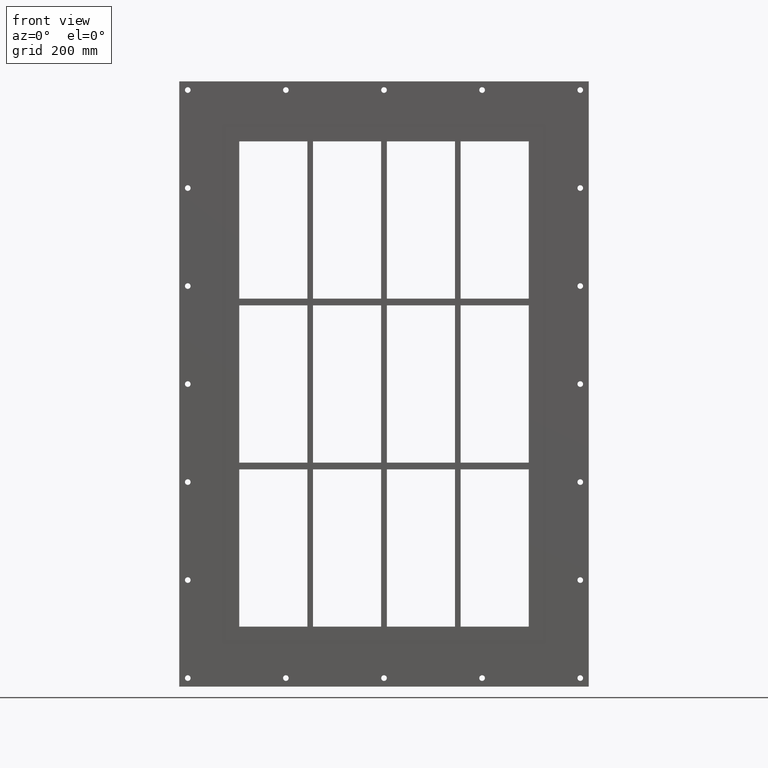
[diagram: clean part render]
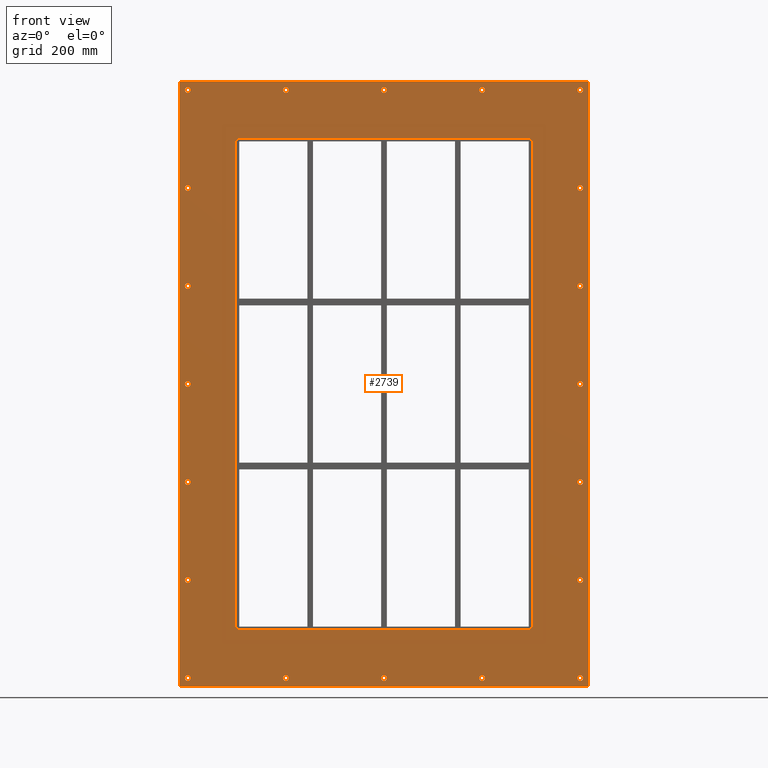
[diagram: same view with one face highlighted and labeled with its STEP entity id]
A machine part, front view. The second image highlights one B-rep face of the part: STEP entity #2739.
In plain terms, the highlighted planar face has unit normal (0, 1, 0).
Its self-contained STEP definition (entity closure, byte-faithful):
#84=CARTESIAN_POINT('',(-342.0,0.0,-520.00000000000011));
#85=VERTEX_POINT('',#84);
#86=CARTESIAN_POINT('',(-347.0,0.0,-520.00000000000011));
#87=DIRECTION('',(0.0,1.0,0.0));
#88=DIRECTION('',(1.0,0.0,0.0));
#89=AXIS2_PLACEMENT_3D('',#86,#87,#88);
#90=CIRCLE('',#89,5.0);
#91=EDGE_CURVE('',#85,#85,#90,.T.);
#112=CARTESIAN_POINT('',(352.0,0.0,-346.70000000000005));
#113=VERTEX_POINT('',#112);
#114=CARTESIAN_POINT('',(347.0,0.0,-346.70000000000005));
#115=DIRECTION('',(0.0,1.0,0.0));
#116=DIRECTION('',(1.0,0.0,0.0));
#117=AXIS2_PLACEMENT_3D('',#114,#115,#116);
#118=CIRCLE('',#117,5.0);
#119=EDGE_CURVE('',#113,#113,#118,.T.);
#140=CARTESIAN_POINT('',(-342.0,0.0,-346.70000000000005));
#141=VERTEX_POINT('',#140);
#142=CARTESIAN_POINT('',(-347.0,0.0,-346.70000000000005));
#143=DIRECTION('',(0.0,1.0,0.0));
#144=DIRECTION('',(1.0,0.0,0.0));
#145=AXIS2_PLACEMENT_3D('',#142,#143,#144);
#146=CIRCLE('',#145,5.0);
#147=EDGE_CURVE('',#141,#141,#146,.T.);
#168=CARTESIAN_POINT('',(352.0,0.0,-173.40000000000006));
#169=VERTEX_POINT('',#168);
#170=CARTESIAN_POINT('',(347.0,0.0,-173.40000000000006));
#171=DIRECTION('',(0.0,1.0,0.0));
#172=DIRECTION('',(1.0,0.0,0.0));
#173=AXIS2_PLACEMENT_3D('',#170,#171,#172);
#174=CIRCLE('',#173,5.0);
#175=EDGE_CURVE('',#169,#169,#174,.T.);
#196=CARTESIAN_POINT('',(-342.0,0.0,-173.40000000000006));
#197=VERTEX_POINT('',#196);
#198=CARTESIAN_POINT('',(-347.0,0.0,-173.40000000000006));
#199=DIRECTION('',(0.0,1.0,0.0));
#200=DIRECTION('',(1.0,0.0,0.0));
#201=AXIS2_PLACEMENT_3D('',#198,#199,#200);
#202=CIRCLE('',#201,5.0);
#203=EDGE_CURVE('',#197,#197,#202,.T.);
#224=CARTESIAN_POINT('',(352.0,0.0,-0.100000000000087));
#225=VERTEX_POINT('',#224);
#226=CARTESIAN_POINT('',(347.0,0.0,-0.100000000000087));
#227=DIRECTION('',(0.0,1.0,0.0));
#228=DIRECTION('',(1.0,0.0,0.0));
#229=AXIS2_PLACEMENT_3D('',#226,#227,#228);
#230=CIRCLE('',#229,5.0);
#231=EDGE_CURVE('',#225,#225,#230,.T.);
#252=CARTESIAN_POINT('',(-342.0,0.0,-0.100000000000087));
#253=VERTEX_POINT('',#252);
#254=CARTESIAN_POINT('',(-347.0,0.0,-0.100000000000087));
#255=DIRECTION('',(0.0,1.0,0.0));
#256=DIRECTION('',(1.0,0.0,0.0));
#257=AXIS2_PLACEMENT_3D('',#254,#255,#256);
#258=CIRCLE('',#257,5.0);
#259=EDGE_CURVE('',#253,#253,#258,.T.);
#280=CARTESIAN_POINT('',(352.0,0.0,173.20000000000005));
#281=VERTEX_POINT('',#280);
#282=CARTESIAN_POINT('',(347.0,0.0,173.20000000000005));
#283=DIRECTION('',(0.0,1.0,0.0));
#284=DIRECTION('',(1.0,0.0,0.0));
#285=AXIS2_PLACEMENT_3D('',#282,#283,#284);
#286=CIRCLE('',#285,5.0);
#287=EDGE_CURVE('',#281,#281,#286,.T.);
#308=CARTESIAN_POINT('',(-342.0,0.0,173.20000000000005));
#309=VERTEX_POINT('',#308);
#310=CARTESIAN_POINT('',(-347.0,0.0,173.20000000000005));
#311=DIRECTION('',(0.0,1.0,0.0));
#312=DIRECTION('',(1.0,0.0,0.0));
#313=AXIS2_PLACEMENT_3D('',#310,#311,#312);
#314=CIRCLE('',#313,5.0);
#315=EDGE_CURVE('',#309,#309,#314,.T.);
#336=CARTESIAN_POINT('',(352.0,0.0,346.50000000000006));
#337=VERTEX_POINT('',#336);
#338=CARTESIAN_POINT('',(347.0,0.0,346.50000000000006));
#339=DIRECTION('',(0.0,1.0,0.0));
#340=DIRECTION('',(1.0,0.0,0.0));
#341=AXIS2_PLACEMENT_3D('',#338,#339,#340);
#342=CIRCLE('',#341,5.0);
#343=EDGE_CURVE('',#337,#337,#342,.T.);
#364=CARTESIAN_POINT('',(-342.0,0.0,346.50000000000006));
#365=VERTEX_POINT('',#364);
#366=CARTESIAN_POINT('',(-347.0,0.0,346.50000000000006));
#367=DIRECTION('',(0.0,1.0,0.0));
#368=DIRECTION('',(1.0,0.0,0.0));
#369=AXIS2_PLACEMENT_3D('',#366,#367,#368);
#370=CIRCLE('',#369,5.0);
#371=EDGE_CURVE('',#365,#365,#370,.T.);
#392=CARTESIAN_POINT('',(-168.5,0.0,519.80000000000007));
#393=VERTEX_POINT('',#392);
#394=CARTESIAN_POINT('',(-173.5,0.0,519.80000000000007));
#395=DIRECTION('',(0.0,1.0,0.0));
#396=DIRECTION('',(1.0,0.0,0.0));
#397=AXIS2_PLACEMENT_3D('',#394,#395,#396);
#398=CIRCLE('',#397,5.0);
#399=EDGE_CURVE('',#393,#393,#398,.T.);
#420=CARTESIAN_POINT('',(-168.5,0.0,-520.00000000000011));
#421=VERTEX_POINT('',#420);
#422=CARTESIAN_POINT('',(-173.5,0.0,-520.00000000000011));
#423=DIRECTION('',(0.0,1.0,0.0));
#424=DIRECTION('',(1.0,0.0,0.0));
#425=AXIS2_PLACEMENT_3D('',#422,#423,#424);
#426=CIRCLE('',#425,5.0);
#427=EDGE_CURVE('',#421,#421,#426,.T.);
#448=CARTESIAN_POINT('',(5.0,0.0,519.80000000000007));
#449=VERTEX_POINT('',#448);
#450=CARTESIAN_POINT('',(0.0,0.0,519.80000000000007));
#451=DIRECTION('',(0.0,1.0,0.0));
#452=DIRECTION('',(1.0,0.0,0.0));
#453=AXIS2_PLACEMENT_3D('',#450,#451,#452);
#454=CIRCLE('',#453,5.0);
#455=EDGE_CURVE('',#449,#449,#454,.T.);
#476=CARTESIAN_POINT('',(5.0,0.0,-520.00000000000011));
#477=VERTEX_POINT('',#476);
#478=CARTESIAN_POINT('',(0.0,0.0,-520.00000000000011));
#479=DIRECTION('',(0.0,1.0,0.0));
#480=DIRECTION('',(1.0,0.0,0.0));
#481=AXIS2_PLACEMENT_3D('',#478,#479,#480);
#482=CIRCLE('',#481,5.0);
#483=EDGE_CURVE('',#477,#477,#482,.T.);
#504=CARTESIAN_POINT('',(178.5,0.0,519.80000000000007));
#505=VERTEX_POINT('',#504);
#506=CARTESIAN_POINT('',(173.5,0.0,519.80000000000007));
#507=DIRECTION('',(0.0,1.0,0.0));
#508=DIRECTION('',(1.0,0.0,0.0));
#509=AXIS2_PLACEMENT_3D('',#506,#507,#508);
#510=CIRCLE('',#509,5.0);
#511=EDGE_CURVE('',#505,#505,#510,.T.);
#532=CARTESIAN_POINT('',(178.5,0.0,-520.00000000000011));
#533=VERTEX_POINT('',#532);
#534=CARTESIAN_POINT('',(173.5,0.0,-520.00000000000011));
#535=DIRECTION('',(0.0,1.0,0.0));
#536=DIRECTION('',(1.0,0.0,0.0));
#537=AXIS2_PLACEMENT_3D('',#534,#535,#536);
#538=CIRCLE('',#537,5.0);
#539=EDGE_CURVE('',#533,#533,#538,.T.);
#560=CARTESIAN_POINT('',(352.0,0.0,-520.00000000000011));
#561=VERTEX_POINT('',#560);
#562=CARTESIAN_POINT('',(347.0,0.0,-520.00000000000011));
#563=DIRECTION('',(0.0,1.0,0.0));
#564=DIRECTION('',(1.0,0.0,0.0));
#565=AXIS2_PLACEMENT_3D('',#562,#563,#564);
#566=CIRCLE('',#565,5.0);
#567=EDGE_CURVE('',#561,#561,#566,.T.);
#588=CARTESIAN_POINT('',(-342.0,0.0,519.80000000000007));
#589=VERTEX_POINT('',#588);
#590=CARTESIAN_POINT('',(-347.0,0.0,519.80000000000007));
#591=DIRECTION('',(0.0,1.0,0.0));
#592=DIRECTION('',(1.0,0.0,0.0));
#593=AXIS2_PLACEMENT_3D('',#590,#591,#592);
#594=CIRCLE('',#593,5.0);
#595=EDGE_CURVE('',#589,#589,#594,.T.);
#616=CARTESIAN_POINT('',(352.0,0.0,519.80000000000007));
#617=VERTEX_POINT('',#616);
#618=CARTESIAN_POINT('',(347.0,0.0,519.80000000000007));
#619=DIRECTION('',(0.0,1.0,0.0));
#620=DIRECTION('',(1.0,0.0,0.0));
#621=AXIS2_PLACEMENT_3D('',#618,#619,#620);
#622=CIRCLE('',#621,5.0);
#623=EDGE_CURVE('',#617,#617,#622,.T.);
#2570=CARTESIAN_POINT('',(-5.703353E-014,0.0,-3.802235E-014));
#2571=DIRECTION('',(0.0,1.0,0.0));
#2572=DIRECTION('',(0.0,0.0,1.0));
#2573=AXIS2_PLACEMENT_3D('',#2570,#2571,#2572);
#2574=PLANE('',#2573);
#2575=CARTESIAN_POINT('',(-362.0,0.0,535.00000000000011));
#2576=VERTEX_POINT('',#2575);
#2577=CARTESIAN_POINT('',(361.99999999999994,0.0,535.00000000000011));
#2578=VERTEX_POINT('',#2577);
#2579=CARTESIAN_POINT('',(-362.0,0.0,535.00000000000011));
#2580=DIRECTION('',(1.0,0.0,0.0));
#2581=VECTOR('',#2580,724.0);
#2582=LINE('',#2579,#2581);
#2583=EDGE_CURVE('',#2576,#2578,#2582,.T.);
#2584=ORIENTED_EDGE('',*,*,#2583,.F.);
#2585=CARTESIAN_POINT('',(-362.0,0.0,-535.00000000000011));
#2586=VERTEX_POINT('',#2585);
#2587=CARTESIAN_POINT('',(-362.0,0.0,-535.00000000000011));
#2588=DIRECTION('',(0.0,0.0,1.0));
#2589=VECTOR('',#2588,1070.0000000000002);
#2590=LINE('',#2587,#2589);
#2591=EDGE_CURVE('',#2586,#2576,#2590,.T.);
#2592=ORIENTED_EDGE('',*,*,#2591,.F.);
#2593=CARTESIAN_POINT('',(361.99999999999994,0.0,-535.00000000000011));
#2594=VERTEX_POINT('',#2593);
#2595=CARTESIAN_POINT('',(361.99999999999994,0.0,-535.00000000000011));
#2596=DIRECTION('',(-1.0,0.0,0.0));
#2597=VECTOR('',#2596,724.0);
#2598=LINE('',#2595,#2597);
#2599=EDGE_CURVE('',#2594,#2586,#2598,.T.);
#2600=ORIENTED_EDGE('',*,*,#2599,.F.);
#2601=CARTESIAN_POINT('',(361.99999999999994,0.0,535.00000000000011));
#2602=DIRECTION('',(0.0,0.0,-1.0));
#2603=VECTOR('',#2602,1070.0000000000002);
#2604=LINE('',#2601,#2603);
#2605=EDGE_CURVE('',#2578,#2594,#2604,.T.);
#2606=ORIENTED_EDGE('',*,*,#2605,.F.);
#2607=EDGE_LOOP('',(#2584,#2592,#2600,#2606));
#2608=FACE_OUTER_BOUND('',#2607,.T.);
#2609=ORIENTED_EDGE('',*,*,#91,.T.);
#2610=EDGE_LOOP('',(#2609));
#2611=FACE_BOUND('',#2610,.T.);
#2612=ORIENTED_EDGE('',*,*,#119,.T.);
#2613=EDGE_LOOP('',(#2612));
#2614=FACE_BOUND('',#2613,.T.);
#2615=ORIENTED_EDGE('',*,*,#147,.T.);
#2616=EDGE_LOOP('',(#2615));
#2617=FACE_BOUND('',#2616,.T.);
#2618=ORIENTED_EDGE('',*,*,#175,.T.);
#2619=EDGE_LOOP('',(#2618));
#2620=FACE_BOUND('',#2619,.T.);
#2621=ORIENTED_EDGE('',*,*,#203,.T.);
#2622=EDGE_LOOP('',(#2621));
#2623=FACE_BOUND('',#2622,.T.);
#2624=ORIENTED_EDGE('',*,*,#231,.T.);
#2625=EDGE_LOOP('',(#2624));
#2626=FACE_BOUND('',#2625,.T.);
#2627=ORIENTED_EDGE('',*,*,#259,.T.);
#2628=EDGE_LOOP('',(#2627));
#2629=FACE_BOUND('',#2628,.T.);
#2630=ORIENTED_EDGE('',*,*,#287,.T.);
#2631=EDGE_LOOP('',(#2630));
#2632=FACE_BOUND('',#2631,.T.);
#2633=ORIENTED_EDGE('',*,*,#315,.T.);
#2634=EDGE_LOOP('',(#2633));
#2635=FACE_BOUND('',#2634,.T.);
#2636=ORIENTED_EDGE('',*,*,#343,.T.);
#2637=EDGE_LOOP('',(#2636));
#2638=FACE_BOUND('',#2637,.T.);
#2639=ORIENTED_EDGE('',*,*,#371,.T.);
#2640=EDGE_LOOP('',(#2639));
#2641=FACE_BOUND('',#2640,.T.);
#2642=ORIENTED_EDGE('',*,*,#399,.T.);
#2643=EDGE_LOOP('',(#2642));
#2644=FACE_BOUND('',#2643,.T.);
#2645=ORIENTED_EDGE('',*,*,#427,.T.);
#2646=EDGE_LOOP('',(#2645));
#2647=FACE_BOUND('',#2646,.T.);
#2648=ORIENTED_EDGE('',*,*,#455,.T.);
#2649=EDGE_LOOP('',(#2648));
#2650=FACE_BOUND('',#2649,.T.);
#2651=ORIENTED_EDGE('',*,*,#483,.T.);
#2652=EDGE_LOOP('',(#2651));
#2653=FACE_BOUND('',#2652,.T.);
#2654=ORIENTED_EDGE('',*,*,#511,.T.);
#2655=EDGE_LOOP('',(#2654));
#2656=FACE_BOUND('',#2655,.T.);
#2657=ORIENTED_EDGE('',*,*,#539,.T.);
#2658=EDGE_LOOP('',(#2657));
#2659=FACE_BOUND('',#2658,.T.);
#2660=ORIENTED_EDGE('',*,*,#567,.T.);
#2661=EDGE_LOOP('',(#2660));
#2662=FACE_BOUND('',#2661,.T.);
#2663=ORIENTED_EDGE('',*,*,#595,.T.);
#2664=EDGE_LOOP('',(#2663));
#2665=FACE_BOUND('',#2664,.T.);
#2666=ORIENTED_EDGE('',*,*,#623,.T.);
#2667=EDGE_LOOP('',(#2666));
#2668=FACE_BOUND('',#2667,.T.);
#2669=CARTESIAN_POINT('',(-262.0,0.0,-429.00000000000006));
#2670=VERTEX_POINT('',#2669);
#2671=CARTESIAN_POINT('',(-256.0,0.0,-435.0));
#2672=VERTEX_POINT('',#2671);
#2673=CARTESIAN_POINT('',(-256.0,0.0,-429.00000000000006));
#2674=DIRECTION('',(0.0,-1.0,0.0));
#2675=DIRECTION('',(-0.707106781186552,0.0,-0.707106781186543));
#2676=AXIS2_PLACEMENT_3D('',#2673,#2674,#2675);
#2677=CIRCLE('',#2676,6.000000000000001);
#2678=EDGE_CURVE('',#2670,#2672,#2677,.T.);
#2679=ORIENTED_EDGE('',*,*,#2678,.F.);
#2680=CARTESIAN_POINT('',(-262.0,0.0,429.00000000000006));
#2681=VERTEX_POINT('',#2680);
#2682=CARTESIAN_POINT('',(-262.0,0.0,429.0));
#2683=DIRECTION('',(0.0,0.0,-1.0));
#2684=VECTOR('',#2683,858.0);
#2685=LINE('',#2682,#2684);
#2686=EDGE_CURVE('',#2681,#2670,#2685,.T.);
#2687=ORIENTED_EDGE('',*,*,#2686,.F.);
#2688=CARTESIAN_POINT('',(-256.0,0.0,435.00000000000011));
#2689=VERTEX_POINT('',#2688);
#2690=CARTESIAN_POINT('',(-256.0,0.0,429.00000000000006));
#2691=DIRECTION('',(0.0,-1.0,0.0));
#2692=DIRECTION('',(-0.707106781186543,0.0,0.707106781186552));
#2693=AXIS2_PLACEMENT_3D('',#2690,#2691,#2692);
#2694=CIRCLE('',#2693,6.0);
#2695=EDGE_CURVE('',#2689,#2681,#2694,.T.);
#2696=ORIENTED_EDGE('',*,*,#2695,.F.);
#2697=CARTESIAN_POINT('',(256.0,0.0,435.00000000000011));
#2698=VERTEX_POINT('',#2697);
#2699=CARTESIAN_POINT('',(255.99999999999994,0.0,435.00000000000011));
#2700=DIRECTION('',(-1.0,0.0,0.0));
#2701=VECTOR('',#2700,511.99999999999994);
#2702=LINE('',#2699,#2701);
#2703=EDGE_CURVE('',#2698,#2689,#2702,.T.);
#2704=ORIENTED_EDGE('',*,*,#2703,.F.);
#2705=CARTESIAN_POINT('',(262.0,0.0,429.00000000000011));
#2706=VERTEX_POINT('',#2705);
#2707=CARTESIAN_POINT('',(256.0,0.0,429.00000000000011));
#2708=DIRECTION('',(0.0,-1.0,0.0));
#2709=DIRECTION('',(0.707106781186543,0.0,0.707106781186552));
#2710=AXIS2_PLACEMENT_3D('',#2707,#2708,#2709);
#2711=CIRCLE('',#2710,6.0);
#2712=EDGE_CURVE('',#2706,#2698,#2711,.T.);
#2713=ORIENTED_EDGE('',*,*,#2712,.F.);
#2714=CARTESIAN_POINT('',(262.0,0.0,-428.99999999999989));
#2715=VERTEX_POINT('',#2714);
#2716=CARTESIAN_POINT('',(262.0,0.0,-428.99999999999989));
#2717=DIRECTION('',(0.0,0.0,1.0));
#2718=VECTOR('',#2717,858.0);
#2719=LINE('',#2716,#2718);
#2720=EDGE_CURVE('',#2715,#2706,#2719,.T.);
#2721=ORIENTED_EDGE('',*,*,#2720,.F.);
#2722=CARTESIAN_POINT('',(256.0,0.0,-435.0));
#2723=VERTEX_POINT('',#2722);
#2724=CARTESIAN_POINT('',(256.0,0.0,-428.99999999999989));
#2725=DIRECTION('',(0.0,-1.0,0.0));
#2726=DIRECTION('',(0.707106781186543,0.0,-0.707106781186552));
#2727=AXIS2_PLACEMENT_3D('',#2724,#2725,#2726);
#2728=CIRCLE('',#2727,6.0);
#2729=EDGE_CURVE('',#2723,#2715,#2728,.T.);
#2730=ORIENTED_EDGE('',*,*,#2729,.F.);
#2731=CARTESIAN_POINT('',(-256.0,0.0,-435.0));
#2732=DIRECTION('',(1.0,0.0,0.0));
#2733=VECTOR('',#2732,512.0);
#2734=LINE('',#2731,#2733);
#2735=EDGE_CURVE('',#2672,#2723,#2734,.T.);
#2736=ORIENTED_EDGE('',*,*,#2735,.F.);
#2737=EDGE_LOOP('',(#2679,#2687,#2696,#2704,#2713,#2721,#2730,#2736));
#2738=FACE_BOUND('',#2737,.T.);
#2739=ADVANCED_FACE('',(#2608,#2611,#2614,#2617,#2620,#2623,#2626,#2629,#2632,#2635,#2638,#2641,#2644,#2647,#2650,#2653,#2656,#2659,#2662,#2665,#2668,#2738),#2574,.F.);